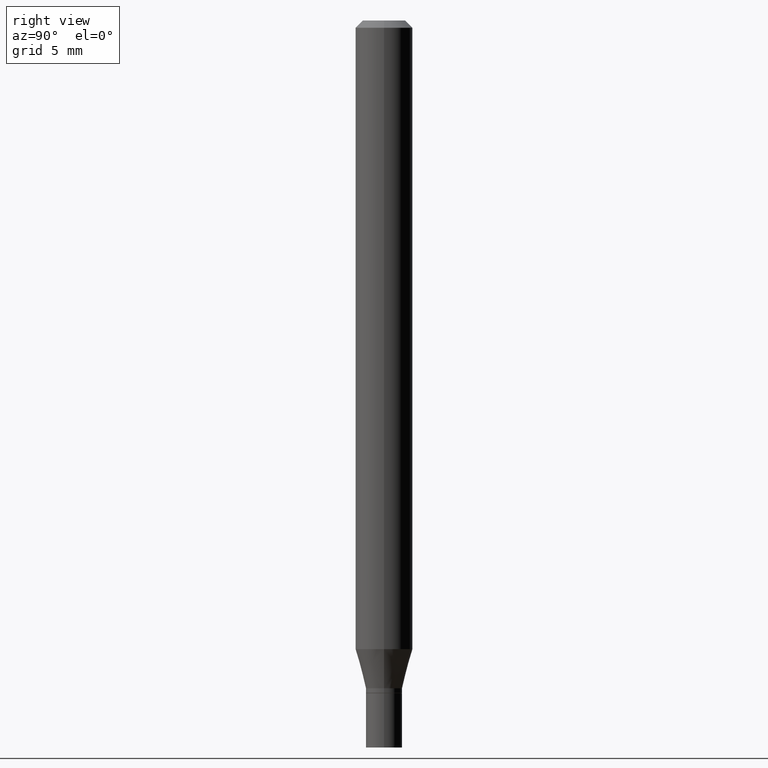
[diagram: clean part render]
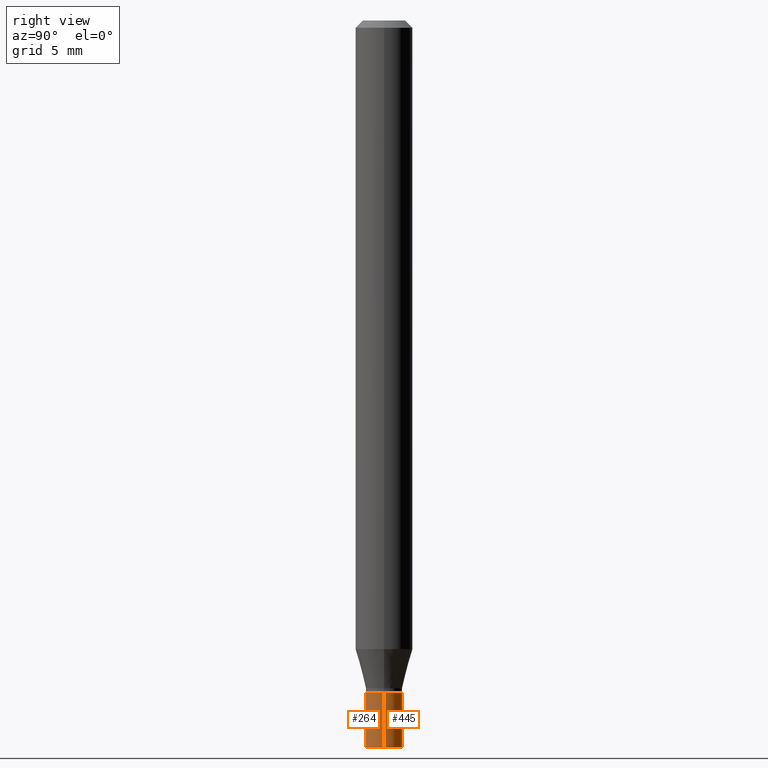
[diagram: same view with one multi-face feature highlighted, each face labeled with its STEP entity id]
A machine part, right view. The highlighted faces form ONE feature: a constant-radius fillet chain: 2 tangent blend faces with common blend radius 0.95 mm. The faces share edges in the B-rep.
Their STEP definitions:
[1] entity #445 (Cylinder):
#2 = AXIS2_PLACEMENT_3D ( 'NONE', #431, #36, #171 ) ;
#14 = ORIENTED_EDGE ( 'NONE', *, *, #343, .T. ) ;
#19 = LINE ( 'NONE', #271, #58 ) ;
#21 = CIRCLE ( 'NONE', #2, 0.03740000000000000269 ) ;
#28 = CARTESIAN_POINT ( 'NONE',  ( -0.03740000000000000269, 2.657429831742774886E-16, -1.839681723755335040E-30 ) ) ;
#36 = DIRECTION ( 'NONE',  ( -2.445468806185136597E-29, 3.491481338843145583E-15, 1.000000000000000000 ) ) ;
#53 = CARTESIAN_POINT ( 'NONE',  ( 3.668203209277704895E-29, -5.237222008264718177E-15, -1.500000000000000222 ) ) ;
#58 = VECTOR ( 'NONE', #314, 39.37007874015748143 ) ;
#82 = VERTEX_POINT ( 'NONE', #204 ) ;
#89 = CARTESIAN_POINT ( 'NONE',  ( 0.03740000000000000269, -5.106640606191984188E-15, -1.387800000000000145 ) ) ;
#113 = ORIENTED_EDGE ( 'NONE', *, *, #444, .F. ) ;
#116 = ORIENTED_EDGE ( 'NONE', *, *, #451, .T. ) ;
#133 = DIRECTION ( 'NONE',  ( 1.000000000000000000, -6.982962677686274599E-15, 0.000000000000000000 ) ) ;
#149 = EDGE_CURVE ( 'NONE', #335, #82, #21, .T. ) ;
#171 = DIRECTION ( 'NONE',  ( 1.000000000000000000, -6.982962677686274599E-15, 0.000000000000000000 ) ) ;
#183 = EDGE_LOOP ( 'NONE', ( #116, #14, #225, #113 ) ) ;
#203 = LINE ( 'NONE', #28, #251 ) ;
#204 = CARTESIAN_POINT ( 'NONE',  ( -0.03740000000000000269, -4.775606921981340198E-15, -1.387800000000000145 ) ) ;
#225 = ORIENTED_EDGE ( 'NONE', *, *, #149, .F. ) ;
#234 = CYLINDRICAL_SURFACE ( 'NONE', #299, 0.03740000000000000269 ) ;
#246 = AXIS2_PLACEMENT_3D ( 'NONE', #53, #384, #133 ) ;
#251 = VECTOR ( 'NONE', #425, 39.37007874015748143 ) ;
#267 = CARTESIAN_POINT ( 'NONE',  ( 0.000000000000000000, 0.000000000000000000, 0.000000000000000000 ) ) ;
#271 = CARTESIAN_POINT ( 'NONE',  ( 0.03740000000000000269, -2.611628041454664002E-16, 1.823690114147680082E-30 ) ) ;
#292 = VERTEX_POINT ( 'NONE', #316 ) ;
#299 = AXIS2_PLACEMENT_3D ( 'NONE', #267, #463, #354 ) ;
#314 = DIRECTION ( 'NONE',  ( -2.445468806185136877E-29, 3.491481338843145188E-15, 1.000000000000000000 ) ) ;
#316 = CARTESIAN_POINT ( 'NONE',  ( -0.03740000000000000269, -4.775606921981340198E-15, -1.500000000000000222 ) ) ;
#332 = VERTEX_POINT ( 'NONE', #419 ) ;
#335 = VERTEX_POINT ( 'NONE', #89 ) ;
#343 = EDGE_CURVE ( 'NONE', #292, #82, #203, .T. ) ;
#354 = DIRECTION ( 'NONE',  ( 1.000000000000000000, -6.982962677686266711E-15, 4.876176775795935793E-29 ) ) ;
#384 = DIRECTION ( 'NONE',  ( -2.445468806185136597E-29, 3.491481338843145583E-15, 1.000000000000000000 ) ) ;
#387 = FACE_OUTER_BOUND ( 'NONE', #183, .T. ) ;
#400 = CIRCLE ( 'NONE', #246, 0.03740000000000000269 ) ;
#419 = CARTESIAN_POINT ( 'NONE',  ( 0.03740000000000000269, -5.498384812410185366E-15, -1.500000000000000222 ) ) ;
#425 = DIRECTION ( 'NONE',  ( -2.445468806185136877E-29, 3.491481338843145188E-15, 1.000000000000000000 ) ) ;
#431 = CARTESIAN_POINT ( 'NONE',  ( 3.393821609223733045E-29, -4.845477802046517788E-15, -1.387800000000000145 ) ) ;
#444 = EDGE_CURVE ( 'NONE', #332, #335, #19, .T. ) ;
#445 = ADVANCED_FACE ( 'NONE', ( #387 ), #234, .T. ) ;
#451 = EDGE_CURVE ( 'NONE', #332, #292, #400, .T. ) ;
#463 = DIRECTION ( 'NONE',  ( -2.445468806185136597E-29, 3.491481338843145583E-15, 1.000000000000000000 ) ) ;
[2] entity #264 (Cylinder):
#11 = DIRECTION ( 'NONE',  ( 1.000000000000000000, -6.982962677686274599E-15, 0.000000000000000000 ) ) ;
#19 = LINE ( 'NONE', #271, #58 ) ;
#28 = CARTESIAN_POINT ( 'NONE',  ( -0.03740000000000000269, 2.657429831742774886E-16, -1.839681723755335040E-30 ) ) ;
#42 = DIRECTION ( 'NONE',  ( -2.445468806185136597E-29, 3.491481338843145583E-15, 1.000000000000000000 ) ) ;
#58 = VECTOR ( 'NONE', #314, 39.37007874015748143 ) ;
#63 = CYLINDRICAL_SURFACE ( 'NONE', #461, 0.03740000000000000269 ) ;
#67 = EDGE_LOOP ( 'NONE', ( #222, #215, #411, #156 ) ) ;
#82 = VERTEX_POINT ( 'NONE', #204 ) ;
#89 = CARTESIAN_POINT ( 'NONE',  ( 0.03740000000000000269, -5.106640606191984188E-15, -1.387800000000000145 ) ) ;
#147 = CIRCLE ( 'NONE', #216, 0.03740000000000000269 ) ;
#156 = ORIENTED_EDGE ( 'NONE', *, *, #177, .F. ) ;
#172 = DIRECTION ( 'NONE',  ( 1.000000000000000000, -6.982962677686266711E-15, 4.876176775795935793E-29 ) ) ;
#177 = EDGE_CURVE ( 'NONE', #82, #335, #147, .T. ) ;
#192 = EDGE_CURVE ( 'NONE', #292, #332, #393, .T. ) ;
#203 = LINE ( 'NONE', #28, #251 ) ;
#204 = CARTESIAN_POINT ( 'NONE',  ( -0.03740000000000000269, -4.775606921981340198E-15, -1.387800000000000145 ) ) ;
#210 = CARTESIAN_POINT ( 'NONE',  ( 0.000000000000000000, 0.000000000000000000, 0.000000000000000000 ) ) ;
#215 = ORIENTED_EDGE ( 'NONE', *, *, #192, .T. ) ;
#216 = AXIS2_PLACEMENT_3D ( 'NONE', #287, #402, #218 ) ;
#218 = DIRECTION ( 'NONE',  ( 1.000000000000000000, -6.982962677686274599E-15, 0.000000000000000000 ) ) ;
#222 = ORIENTED_EDGE ( 'NONE', *, *, #343, .F. ) ;
#251 = VECTOR ( 'NONE', #425, 39.37007874015748143 ) ;
#264 = ADVANCED_FACE ( 'NONE', ( #385 ), #63, .T. ) ;
#271 = CARTESIAN_POINT ( 'NONE',  ( 0.03740000000000000269, -2.611628041454664002E-16, 1.823690114147680082E-30 ) ) ;
#287 = CARTESIAN_POINT ( 'NONE',  ( 3.393821609223733045E-29, -4.845477802046517788E-15, -1.387800000000000145 ) ) ;
#292 = VERTEX_POINT ( 'NONE', #316 ) ;
#293 = CARTESIAN_POINT ( 'NONE',  ( 3.668203209277704895E-29, -5.237222008264718177E-15, -1.500000000000000222 ) ) ;
#314 = DIRECTION ( 'NONE',  ( -2.445468806185136877E-29, 3.491481338843145188E-15, 1.000000000000000000 ) ) ;
#316 = CARTESIAN_POINT ( 'NONE',  ( -0.03740000000000000269, -4.775606921981340198E-15, -1.500000000000000222 ) ) ;
#332 = VERTEX_POINT ( 'NONE', #419 ) ;
#335 = VERTEX_POINT ( 'NONE', #89 ) ;
#343 = EDGE_CURVE ( 'NONE', #292, #82, #203, .T. ) ;
#369 = AXIS2_PLACEMENT_3D ( 'NONE', #293, #42, #11 ) ;
#379 = DIRECTION ( 'NONE',  ( -2.445468806185136597E-29, 3.491481338843145583E-15, 1.000000000000000000 ) ) ;
#385 = FACE_OUTER_BOUND ( 'NONE', #67, .T. ) ;
#393 = CIRCLE ( 'NONE', #369, 0.03740000000000000269 ) ;
#402 = DIRECTION ( 'NONE',  ( -2.445468806185136597E-29, 3.491481338843145583E-15, 1.000000000000000000 ) ) ;
#411 = ORIENTED_EDGE ( 'NONE', *, *, #444, .T. ) ;
#419 = CARTESIAN_POINT ( 'NONE',  ( 0.03740000000000000269, -5.498384812410185366E-15, -1.500000000000000222 ) ) ;
#425 = DIRECTION ( 'NONE',  ( -2.445468806185136877E-29, 3.491481338843145188E-15, 1.000000000000000000 ) ) ;
#444 = EDGE_CURVE ( 'NONE', #332, #335, #19, .T. ) ;
#461 = AXIS2_PLACEMENT_3D ( 'NONE', #210, #379, #172 ) ;